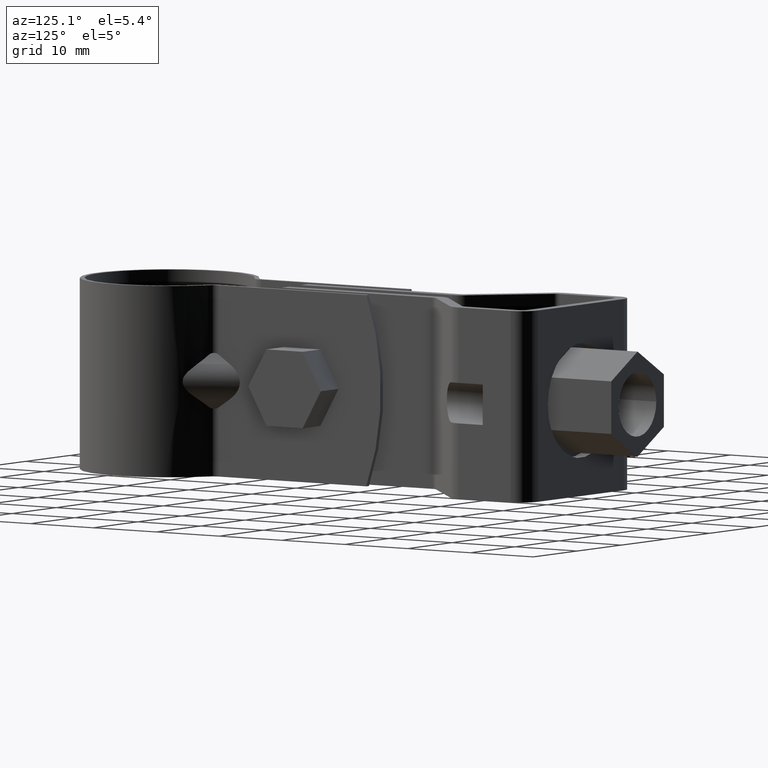
[diagram: clean part render]
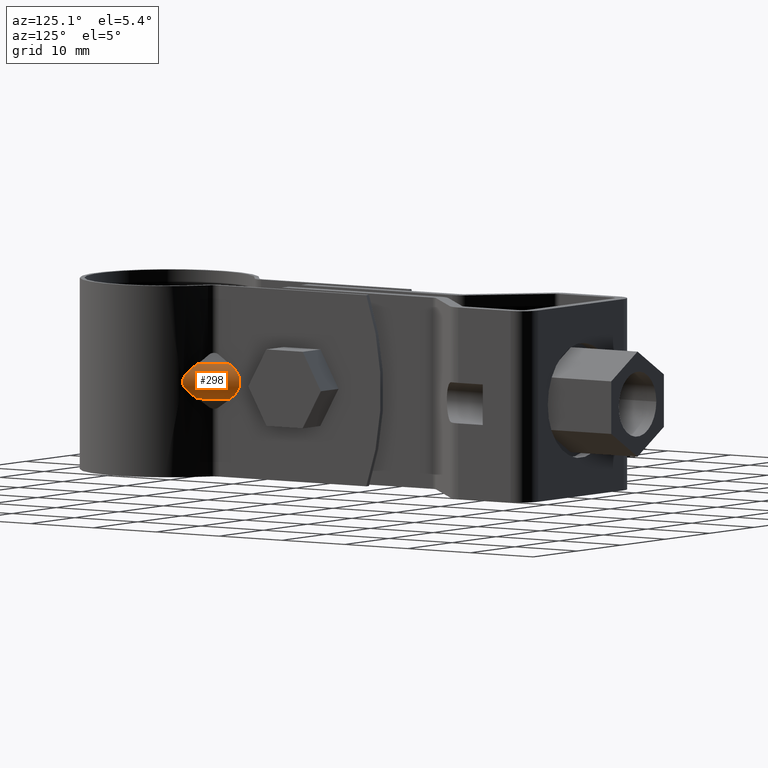
[diagram: same view with one face highlighted and labeled with its STEP entity id]
A machine part, auxiliary view. The second image highlights one B-rep face of the part: STEP entity #298.
In plain terms, the highlighted cylindrical surface (edge-blend (fillet) strip) has radius 4 mm, axis along (0.454, -0.891, -0).
Its self-contained STEP definition (entity closure, byte-faithful):
#298 = ADVANCED_FACE( '', ( #458 ), #459, .T. );
#458 = FACE_OUTER_BOUND( '', #730, .T. );
#459 = CYLINDRICAL_SURFACE( '', #731, 4.00000000000000 );
#730 = EDGE_LOOP( '', ( #1199, #1200, #1201, #1202 ) );
#731 = AXIS2_PLACEMENT_3D( '', #1203, #1204, #1205 );
#1199 = ORIENTED_EDGE( '', *, *, #2021, .T. );
#1200 = ORIENTED_EDGE( '', *, *, #2004, .T. );
#1201 = ORIENTED_EDGE( '', *, *, #1963, .F. );
#1202 = ORIENTED_EDGE( '', *, *, #1962, .T. );
#1203 = CARTESIAN_POINT( '', ( 6.67257909010658, 2.84739658158041, -3.38271077815477E-014 ) );
#1204 = DIRECTION( '', ( 0.453990499739547, -0.891006524188368, -9.15933995315754E-016 ) );
#1205 = DIRECTION( '', ( 0.729869815763730, 0.371887245949432, -0.573576436351046 ) );
#1962 = EDGE_CURVE( '', #2288, #2303, #2305, .T. );
#1963 = EDGE_CURVE( '', #2288, #2306, #2307, .T. );
#2004 = EDGE_CURVE( '', #2375, #2306, #2376, .T. );
#2021 = EDGE_CURVE( '', #2303, #2375, #2398, .T. );
#2288 = VERTEX_POINT( '', #2830 );
#2303 = VERTEX_POINT( '', #2869 );
#2305 = B_SPLINE_CURVE_WITH_KNOTS( '', 3, ( #2871, #2872, #2873, #2874, #2875, #2876, #2877, #2878, #2879, #2880, #2881, #2882, #2883, #2884, #2885, #2886, #2887, #2888, #2889, #2890, #2891, #2892 ), .UNSPECIFIED., .F., .F., ( 4, 2, 2, 2, 2, 2, 2, 2, 2, 2, 4 ), ( 0.000000000000000, 0.000781037746891712, 0.00156207549378342, 0.00234311324067513, 0.00273363211412099, 0.00312415098756685, 0.00351466986101271, 0.00390518873445856, 0.00468622648135028, 0.00546726422824199, 0.00624830197513370 ), .UNSPECIFIED. );
#2306 = VERTEX_POINT( '', #2893 );
#2307 = LINE( '', #2894, #2895 );
#2375 = VERTEX_POINT( '', #3023 );
#2376 = ELLIPSE( '', #3024, 8.81075705834106, 4.00000000000000 );
#2398 = LINE( '', #3057, #3058 );
#2830 = CARTESIAN_POINT( '', ( 7.02857230078244, 9.36607022249320, 2.29430574540415 ) );
#2869 = CARTESIAN_POINT( '', ( 7.02857230078237, 9.36607022249325, -2.29430574540421 ) );
#2871 = CARTESIAN_POINT( '', ( 7.02857230078244, 9.36607022249320, 2.29430574540415 ) );
#2872 = CARTESIAN_POINT( '', ( 7.20651439260037, 9.23253728626866, 2.15445452280863 ) );
#2873 = CARTESIAN_POINT( '', ( 7.37579915718212, 9.09754409720483, 2.00775292313248 ) );
#2874 = CARTESIAN_POINT( '', ( 7.69553038095415, 8.82873342917808, 1.69597636555728 ) );
#2875 = CARTESIAN_POINT( '', ( 7.84614311993295, 8.69470342750182, 1.53122457505237 ) );
#2876 = CARTESIAN_POINT( '', ( 8.12268173297354, 8.43693493014501, 1.17067416167224 ) );
#2877 = CARTESIAN_POINT( '', ( 8.25099555682284, 8.31054352484544, 0.972541626491051 ) );
#2878 = CARTESIAN_POINT( '', ( 8.39957606857361, 8.15942474734038, 0.638276622381483 ) );
#2879 = CARTESIAN_POINT( '', ( 8.44209311334654, 8.11523364901966, 0.518753435922832 ) );
#2880 = CARTESIAN_POINT( '', ( 8.50153307016850, 8.05294286391164, 0.269462715809756 ) );
#2881 = CARTESIAN_POINT( '', ( 8.51859475373321, 8.03477714437595, 0.136652197218036 ) );
#2882 = CARTESIAN_POINT( '', ( 8.51939267071879, 8.03393109630771, -0.126724162578295 ) );
#2883 = CARTESIAN_POINT( '', ( 8.50332374671506, 8.05104758431067, -0.258665823392551 ) );
#2884 = CARTESIAN_POINT( '', ( 8.44505743329816, 8.11214440789724, -0.509353408964003 ) );
#2885 = CARTESIAN_POINT( '', ( 8.40396550614771, 8.15490128885809, -0.626844847126702 ) );
#2886 = CARTESIAN_POINT( '', ( 8.25605251763500, 8.30551033135291, -0.964071096983610 ) );
#2887 = CARTESIAN_POINT( '', ( 8.13032410283079, 8.42958874692052, -1.15953284965074 ) );
#2888 = CARTESIAN_POINT( '', ( 7.85281683724432, 8.68869404340908, -1.52364159150412 ) );
#2889 = CARTESIAN_POINT( '', ( 7.69987296882547, 8.82498849971216, -1.69150067792268 ) );
#2890 = CARTESIAN_POINT( '', ( 7.37751854701627, 9.09619073263814, -2.00631296093158 ) );
#2891 = CARTESIAN_POINT( '', ( 7.20720463940602, 9.23201930493138, -2.15391203250369 ) );
#2892 = CARTESIAN_POINT( '', ( 7.02857230078241, 9.36607022249322, -2.29430574540423 ) );
#2893 = CARTESIAN_POINT( '', ( 5.10000000000000, 13.1511064806350, 2.29430574540416 ) );
#2894 = CARTESIAN_POINT( '', ( 9.59205835316150, 4.33494556537813, 2.29430574540415 ) );
#2895 = VECTOR( '', #3744, 1000.00000000000 );
#3023 = CARTESIAN_POINT( '', ( 5.10000000000000, 13.1511064806350, -2.29430574540421 ) );
#3024 = AXIS2_PLACEMENT_3D( '', #3823, #3824, #3825 );
#3057 = CARTESIAN_POINT( '', ( 9.59205835316147, 4.33494556537812, -2.29430574540422 ) );
#3058 = VECTOR( '', #3852, 1000.00000000000 );
#3744 = DIRECTION( '', ( -0.453990499739547, 0.891006524188368, 8.88178419700125E-016 ) );
#3823 = CARTESIAN_POINT( '', ( 5.10000000000000, 5.93375682456130, -3.07505438184128E-014 ) );
#3824 = DIRECTION( '', ( 1.00000000000000, -6.06692130572647E-017, 9.94025297036068E-048 ) );
#3825 = DIRECTION( '', ( 6.06692130572647E-017, 1.00000000000000, 9.96825944130074E-016 ) );
#3852 = DIRECTION( '', ( -0.453990499739547, 0.891006524188368, 8.88178419700125E-016 ) );